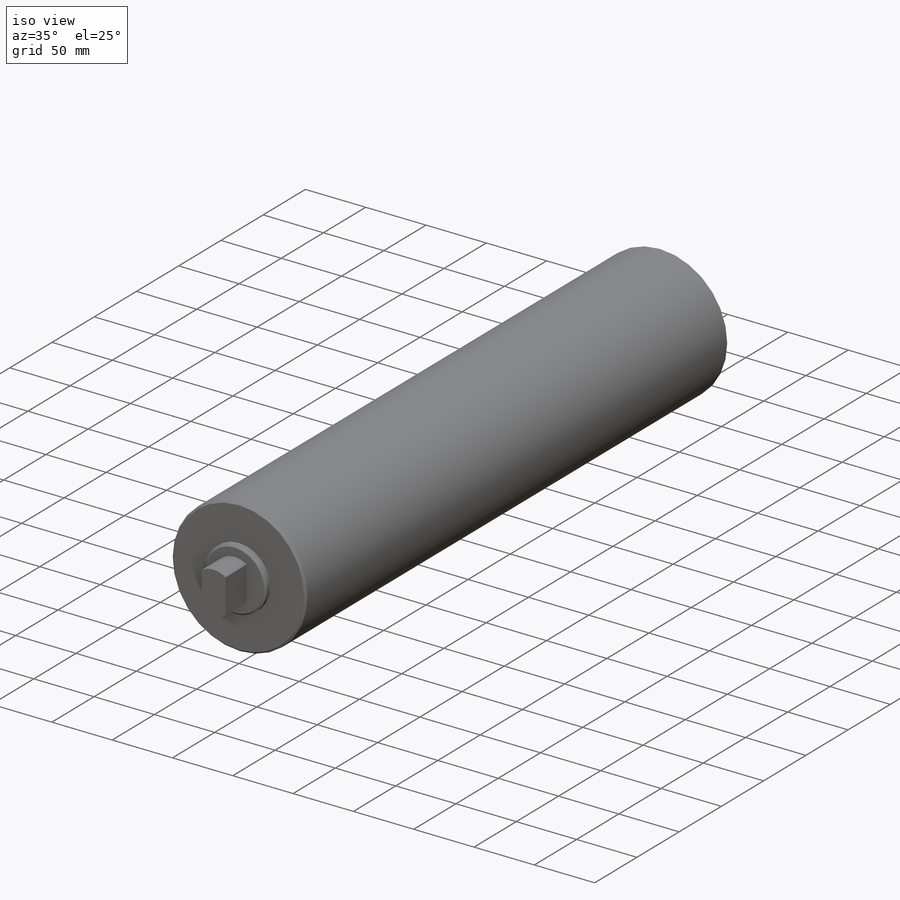
[diagram: iso view]
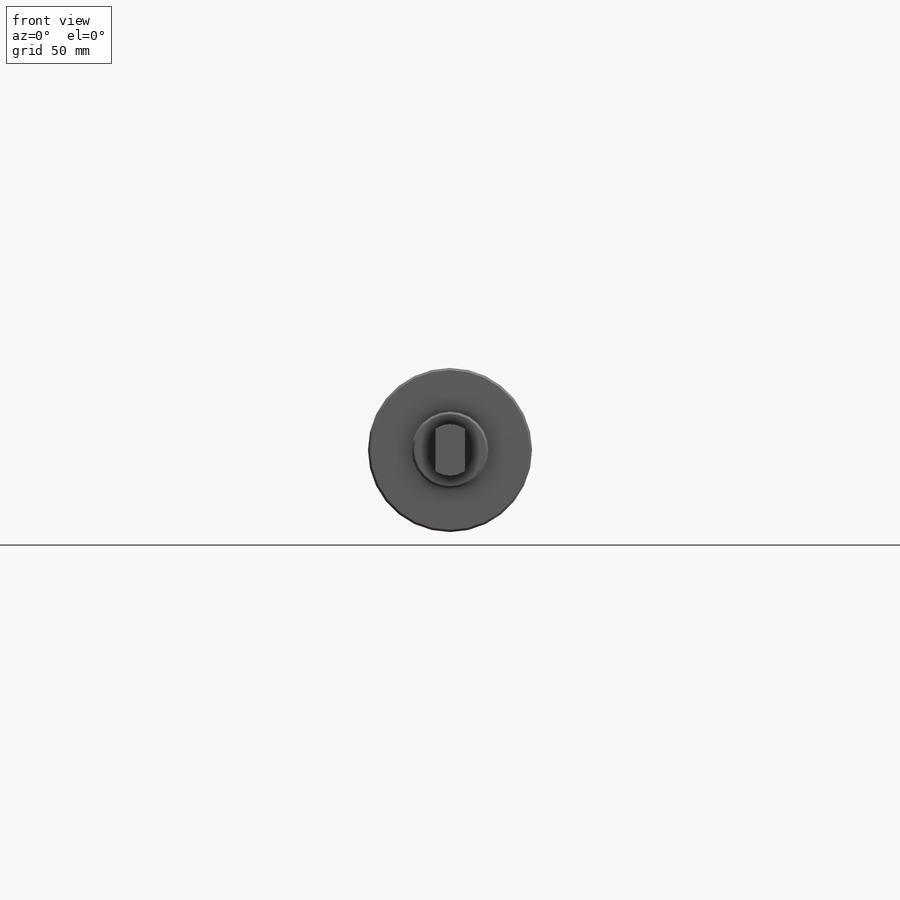
[diagram: front view]
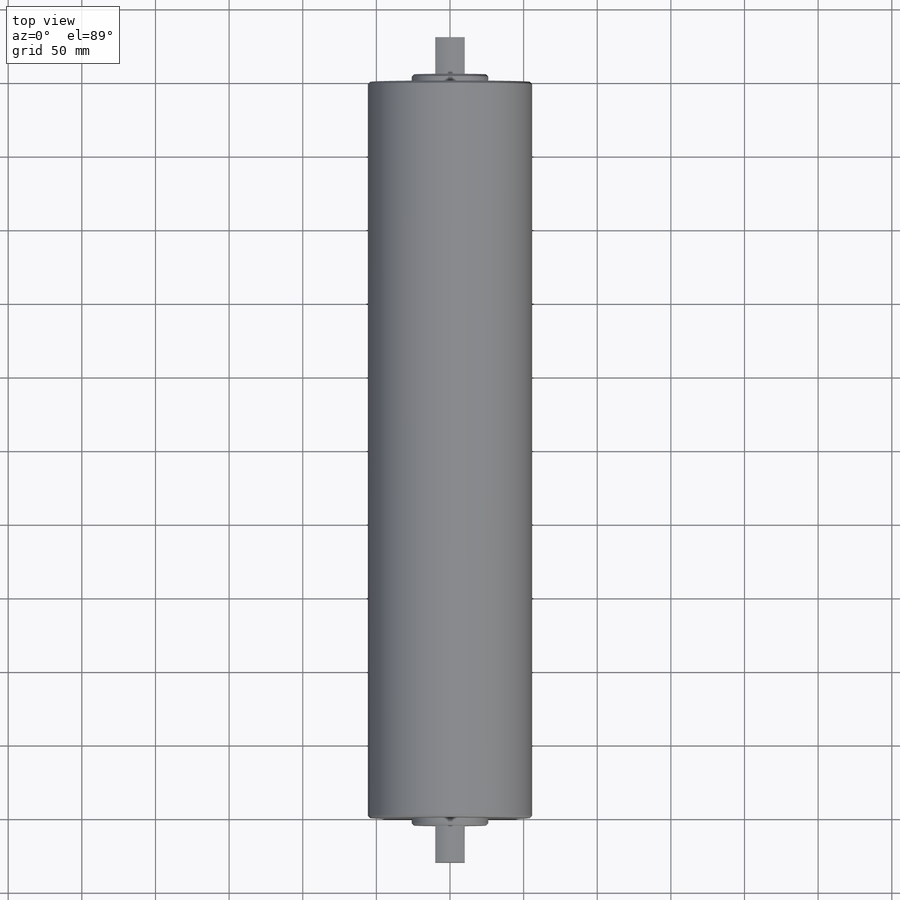
[diagram: top view]
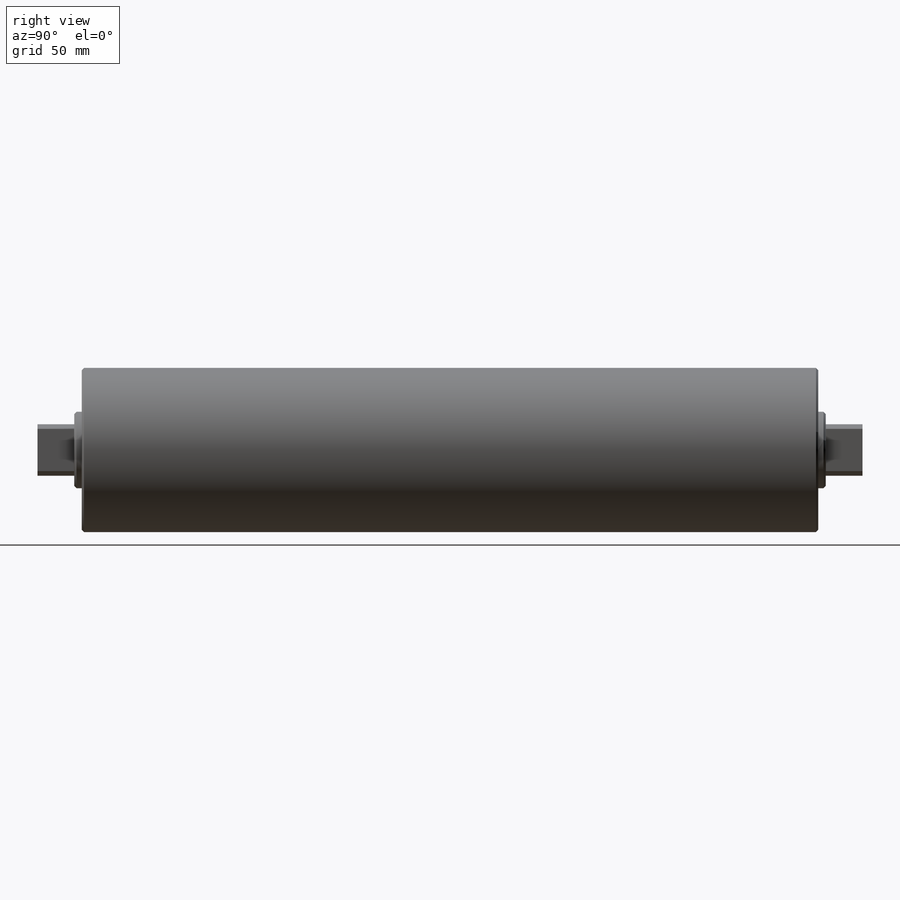
[diagram: right view]
SOLIDWORKS PART (.sldprt)
format: sldprt  version: not decoded by parser v0  size: 224,256 bytes
history: native  units: mm
features: sketch x6, extrude x5, material x1, cut_extrude x1, chamfer x1, mirror x1, plane x1 (+13 scaffold rows collapsed)
feature tree (29):
  scaffold x13  (default folders/planes/origin — collapsed)
  material  "Material <not specified>"
  sketch  "Sketch1"  dims[D1=111.506mm]
  extrude  "Extrude1"  Depth=250.063mm
  sketch  "Sketch2"  dims[D1=52.0mm]
  extrude  "Extrude2"  Depth=5.08mm
  sketch  "Sketch3"  dims[D1=35.0mm]
  extrude  "Extrude3"  Depth=25.019mm
  sketch  "Sketch4"  dims[D1=20.066mm]
  cut_extrude  "Cut-Extrude1"  Depth=24.892mm
  chamfer  "Chamfer1"  Distance=1.524mm Angle=45deg
  mirror  "Mirror1"
  plane  "Plane1"  Offset=2mm
  sketch  "Sketch6"  dims[D1=40.0mm]
  extrude  "Extrude4"  Depth=3mm
  sketch  "Sketch7"  dims[D1=95.0mm D2=14.0mm]
  extrude  "Extrude5"  Depth=41mm
decode coverage: 13 of 14 modeling features carry decoded parameters
note: suppression state not decoded; provenance and decode notes live in map.json
